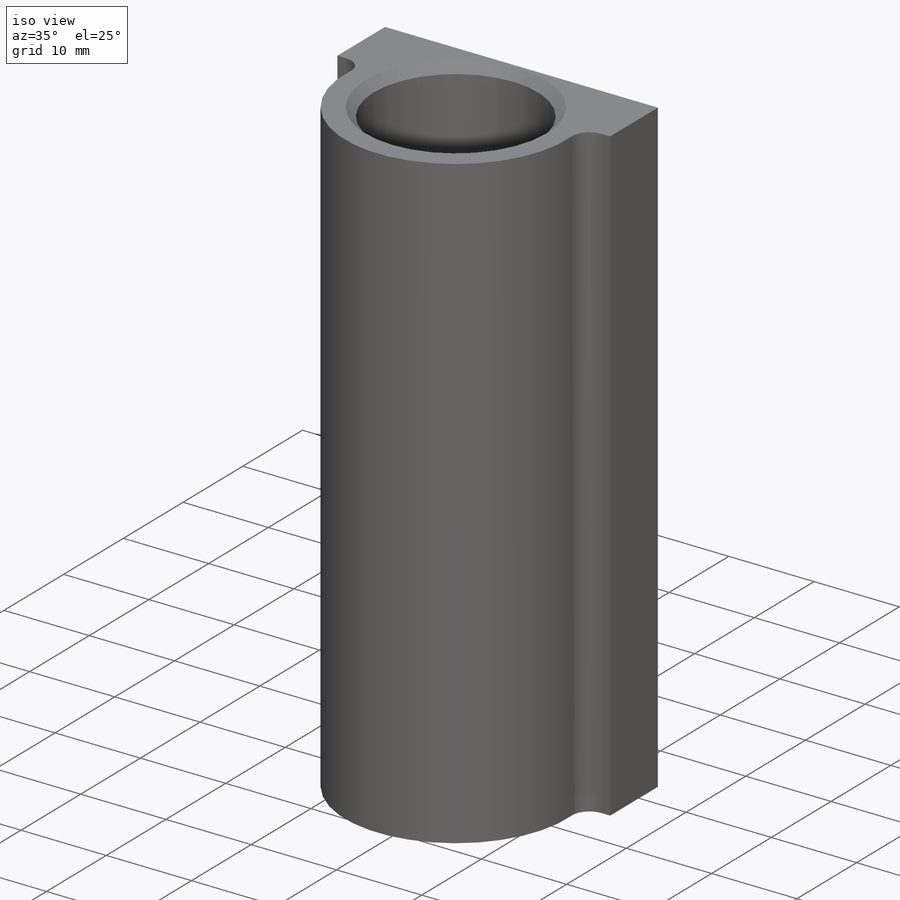
[diagram: iso view]
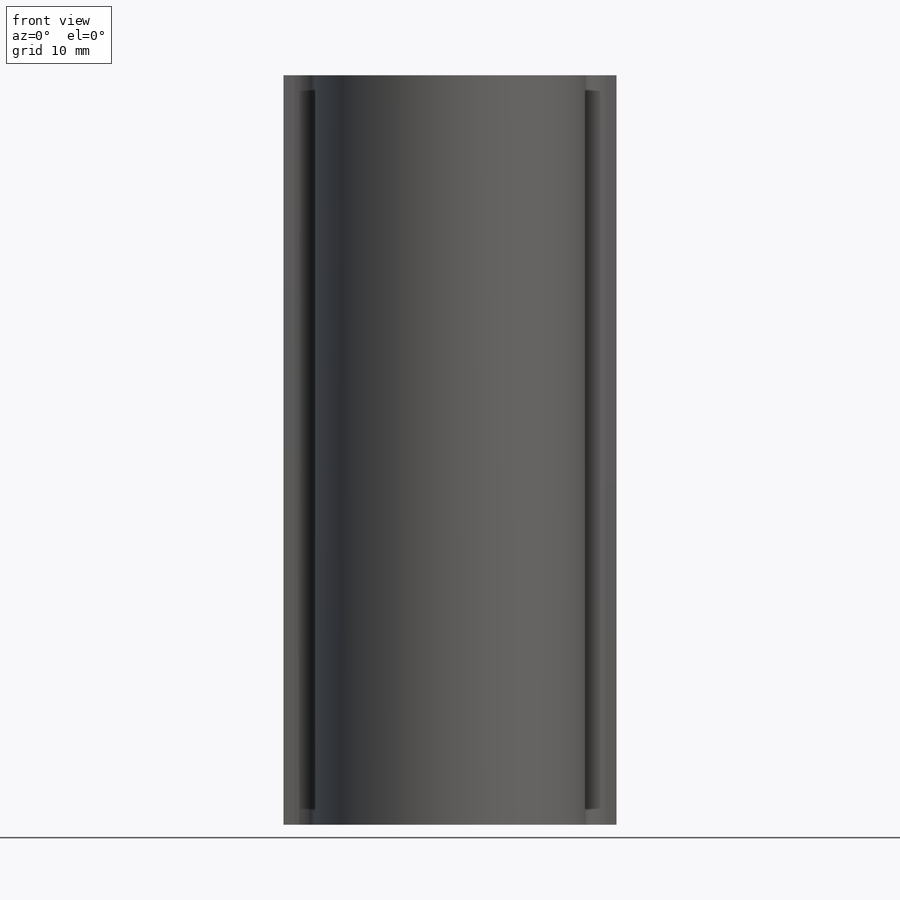
[diagram: front view]
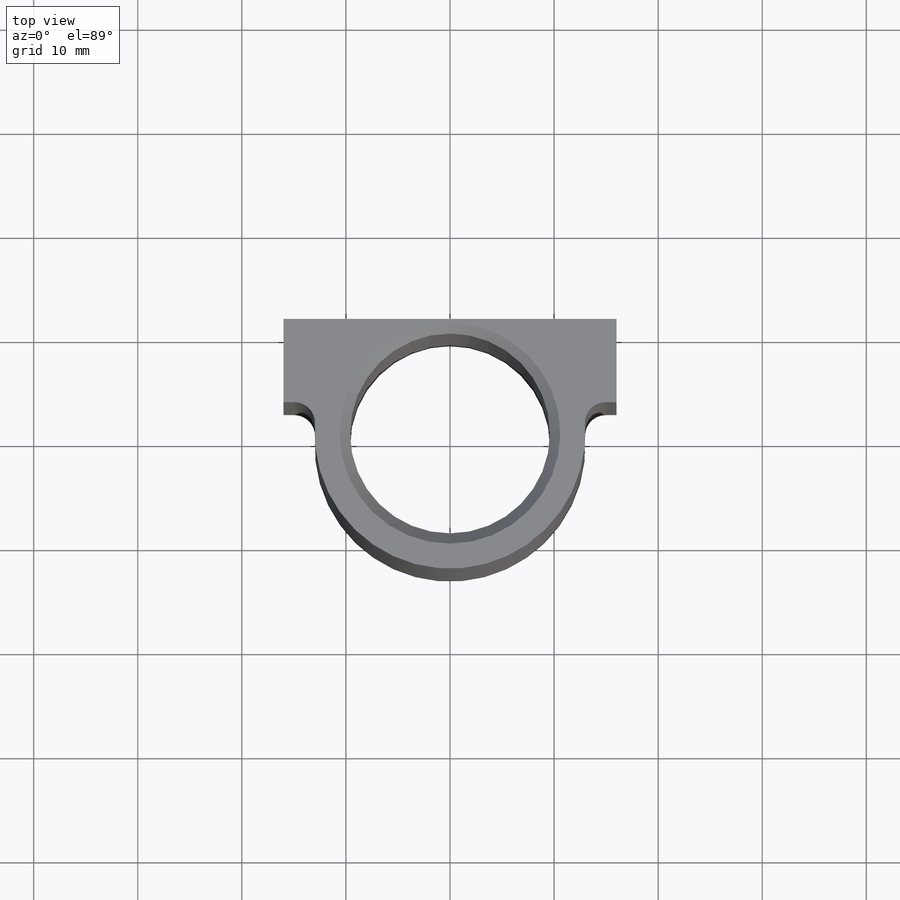
[diagram: top view]
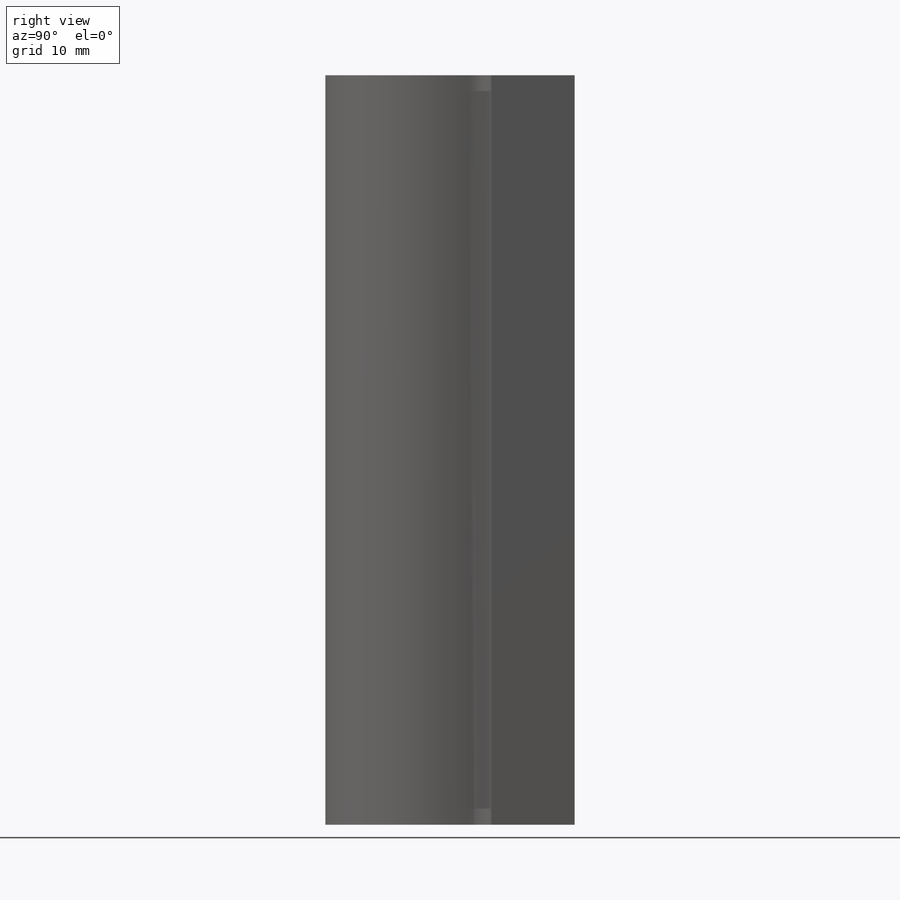
[diagram: right view]
SOLIDWORKS PART (.sldprt)
format: sldprt  version: not decoded by parser v0  size: 183,808 bytes
history: native  units: mm
features: sketch x2, chamfer x2, material x1, extrude x1, cut_extrude x1 (+11 scaffold rows collapsed)
feature tree (18):
  scaffold x11  (default folders/planes/origin — collapsed)
  material  "Material <not specified>"
  sketch  "Sketch1"  dims[c1.D1=19.2mm c1.D2=13.0mm c1.D6=3.0mm c1.D8=5.0mm c2.D6=2.0mm c2.D8=5.0mm c2.D10=2.0mm c2.D11=3.0mm c2.D12=5.0mm c2.D7=3.0mm c3.D11=2.0mm c3.D3=32.0mm c3.D4=8.0mm c3.D5=11.0mm c3.D7=10.5mm c4.D4=8.0mm c4.D9=16.0mm c4.D8=49.0mm c4.D10=6.0mm]
  extrude  "Boss-Extrude1"  Depth=72mm
  sketch  "Sketch2"  dims[c1.D1=5.2mm c1.D2=5.0mm c1.D3=5.0mm c1.D4=30.0mm c2.D3=62.0mm]
  cut_extrude  "Cut-Extrude1"  Depth=6mm
  chamfer  "Chamfer1"  Distance=0.5mm Angle=45deg
  chamfer  "Chamfer2"  Distance=1mm Angle=45deg
decode coverage: 6 of 6 modeling features carry decoded parameters
note: suppression state not decoded; provenance and decode notes live in map.json
